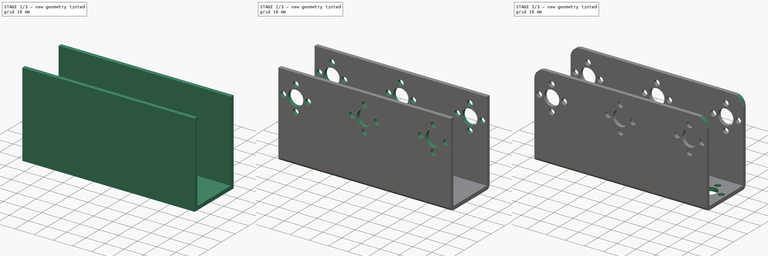
[diagram: build sequence overview — one tinted view per stage of 3, left to right]
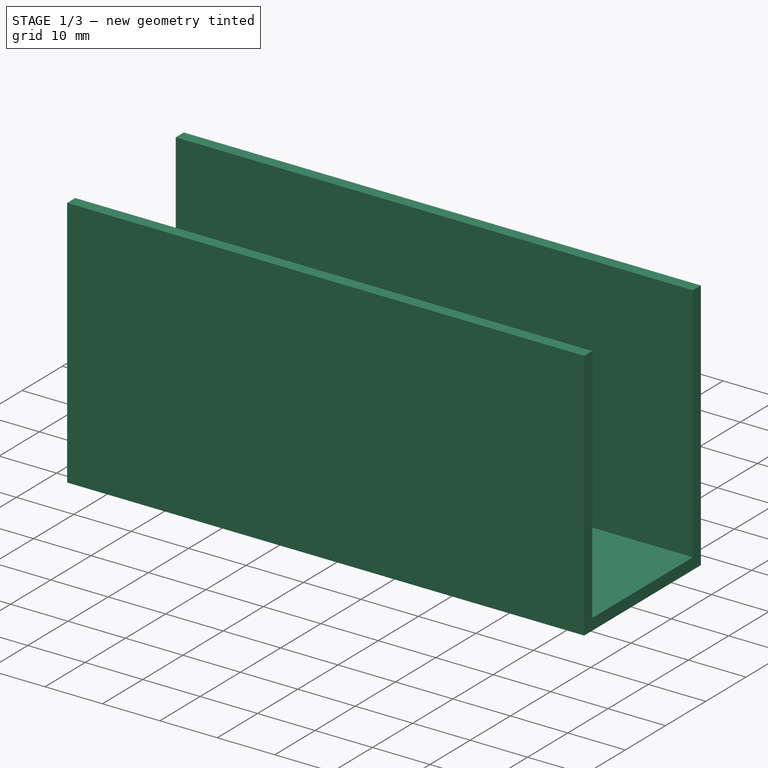
[diagram: stage 1 of 3 — iso view after this stage's code; geometry added in this stage tinted green]
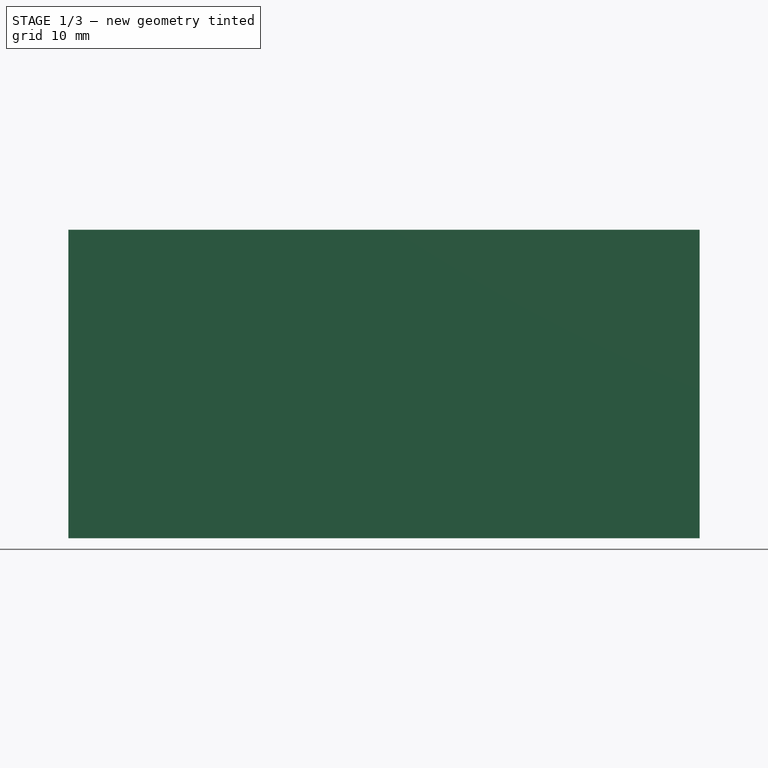
[diagram: stage 1 of 3 — front view after this stage's code; geometry added in this stage tinted green]
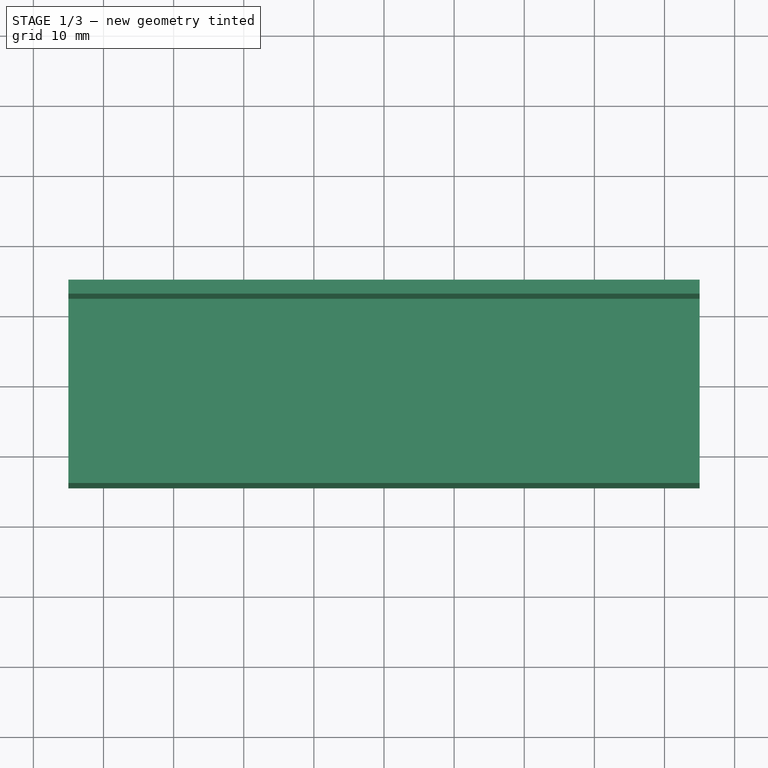
[diagram: stage 1 of 3 — top view after this stage's code; geometry added in this stage tinted green]
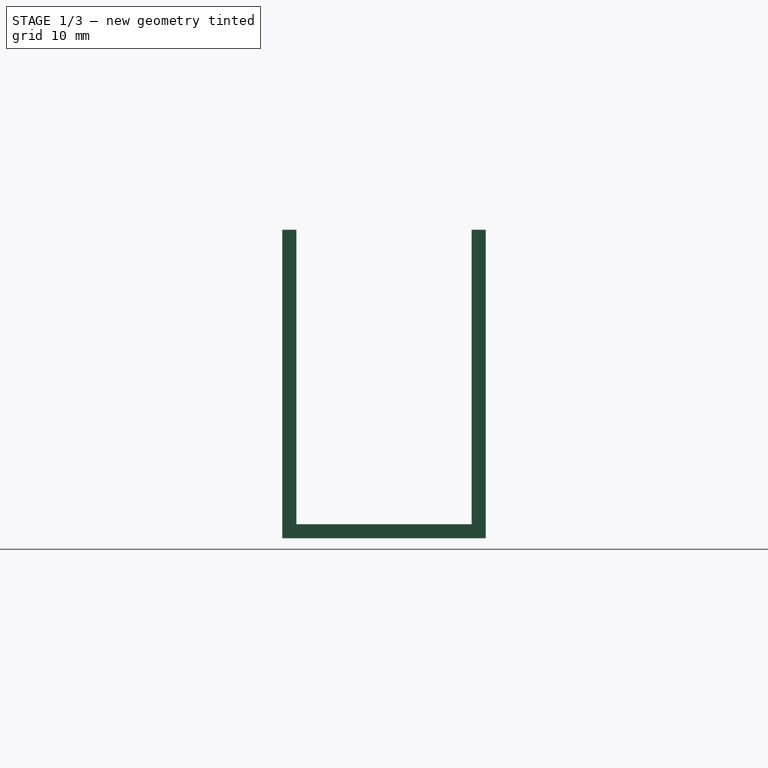
[diagram: stage 1 of 3 — right view after this stage's code; geometry added in this stage tinted green]
FCSTD DOCUMENT  (FreeCAD 0.19R24276 (Git))
Label: parte_baja
License: All rights reserved
LicenseURL: http://en.wikipedia.org/wiki/All_rights_reserved
objects: Sketcher::SketchObject×4, PartDesign::Pad×2, PartDesign::Fillet×2, PartDesign::Pocket×2, PartDesign::Body×1
note: 17 computed .brp shape members not serialized (recipe doc carries the construction recipe); baked Part::Feature solids carry a one-line shape summary decoded from their .brp

FEATURE [Sketcher::SketchObject] Sketch
  FullyConstrained = true
  MapMode = 5
  Support = -> [XY_Plane]
  sketch-geometry (4):
    g0: LineSegment StartX=-45 StartY=14.5 StartZ=0 EndX=45 EndY=14.5 EndZ=0
    g1: LineSegment StartX=45 StartY=14.5 StartZ=0 EndX=45 EndY=-14.5 EndZ=0
    g2: LineSegment StartX=45 StartY=-14.5 StartZ=0 EndX=-45 EndY=-14.5 EndZ=0
    g3: LineSegment StartX=-45 StartY=-14.5 StartZ=0 EndX=-45 EndY=14.5 EndZ=0
  constraints (11):
    c: Coincident(g0,g1)
    c: Coincident(g1,g2)
    c: Coincident(g2,g3)
    c: Coincident(g3,g0)
    c: Horizontal(g0)
    c: Horizontal(g2)
    c: Vertical(g1)
    c: Vertical(g3)
    c: Symmetric(g2,g0,g-1)
    c: DistanceX(g2,g2) = 90
    c: DistanceY(g1,g1) = 29
FEATURE [PartDesign::Pad] Pad
  Direction = (1,1,1)
  Length = 2
  Length2 = 100
  Profile = -> Sketch
  Type = 0
FEATURE [Sketcher::SketchObject] Sketch001
  ExternalGeometry = -> [Pad]
  FullyConstrained = true
  MapMode = 5
  Placement = pos=(0,0,2) rot=(0,0,1;0rad)
  Support = -> [Pad]
  sketch-geometry (8):
    g0: LineSegment StartX=45 StartY=14.5 StartZ=0 EndX=-45 EndY=14.5 EndZ=0
    g1: LineSegment StartX=-45 StartY=14.5 StartZ=0 EndX=-45 EndY=12.5 EndZ=0
    g2: LineSegment StartX=-45 StartY=12.5 StartZ=0 EndX=45 EndY=12.5 EndZ=0
    g3: LineSegment StartX=45 StartY=12.5 StartZ=0 EndX=45 EndY=14.5 EndZ=0
    g4: LineSegment StartX=-45 StartY=-14.5 StartZ=0 EndX=45 EndY=-14.5 EndZ=0
    g5: LineSegment StartX=45 StartY=-14.5 StartZ=0 EndX=45 EndY=-12.5 EndZ=0
    g6: LineSegment StartX=45 StartY=-12.5 StartZ=0 EndX=-45 EndY=-12.5 EndZ=0
    g7: LineSegment StartX=-45 StartY=-12.5 StartZ=0 EndX=-45 EndY=-14.5 EndZ=0
  constraints (22):
    c: Coincident(g0,g1)
    c: Coincident(g1,g2)
    c: Coincident(g2,g3)
    c: Coincident(g3,g0)
    c: Horizontal(g0)
    c: Horizontal(g2)
    c: Vertical(g1)
    c: Vertical(g3)
    c: Coincident(g0,g-3)
    c: Coincident(g4,g5)
    c: Coincident(g5,g6)
    c: Coincident(g6,g7)
    c: Coincident(g7,g4)
    c: Horizontal(g4)
    c: Horizontal(g6)
    c: Vertical(g5)
    c: Vertical(g7)
    c: Coincident(g4,g-4)
    c: Vertical(g5,g0)
    c: Vertical(g6,g1)
    c: DistanceY(g3,g3) = 2
    c: Equal(g3,g5)
FEATURE [PartDesign::Pad] Pad001
  BaseFeature = -> Pad
  Direction = (1,1,1)
  Length = 42
  Length2 = 100
  Profile = -> Sketch001
  Type = 0
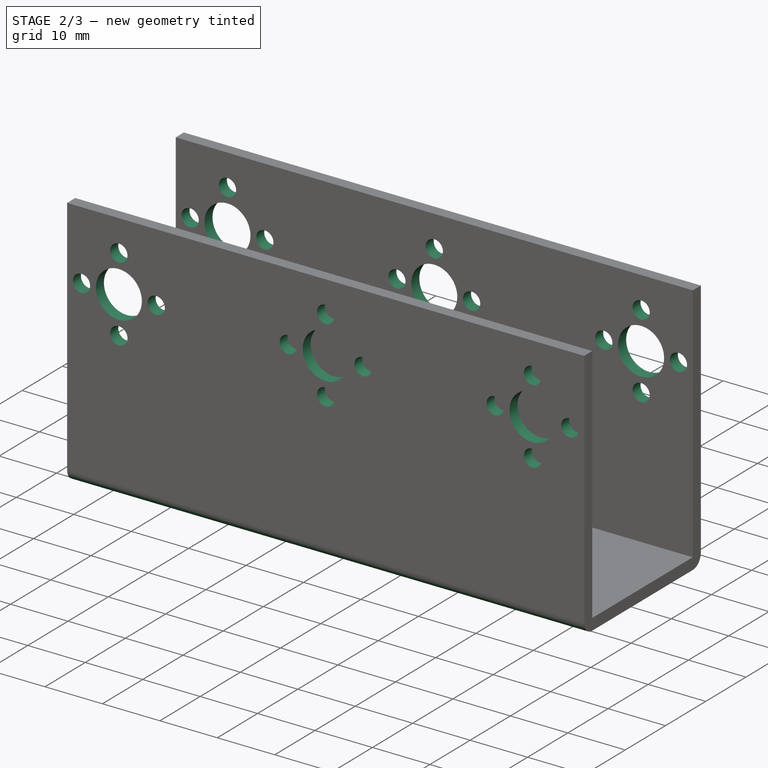
[diagram: stage 2 of 3 — iso view after this stage's code; geometry added in this stage tinted green]
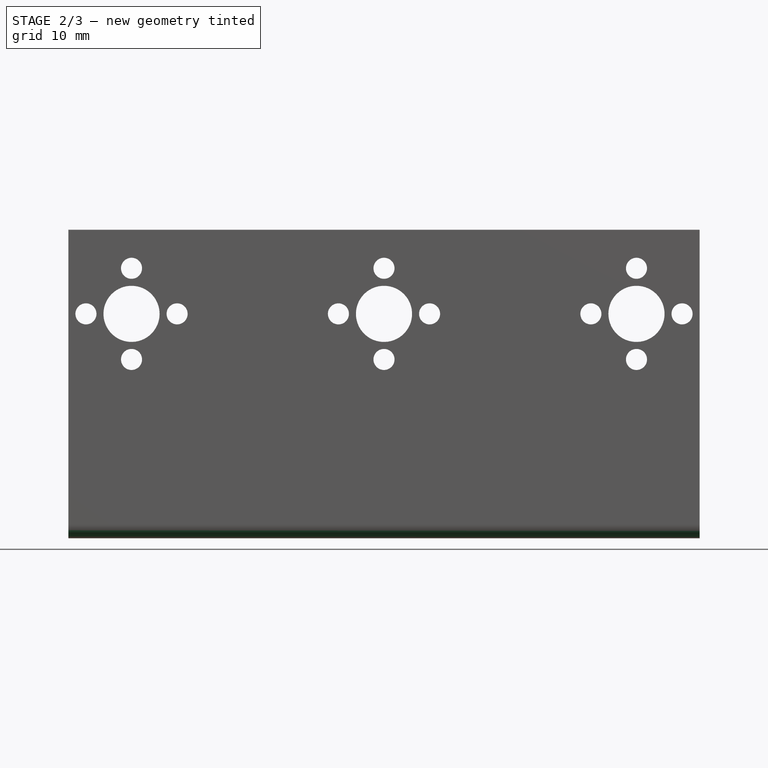
[diagram: stage 2 of 3 — front view after this stage's code; geometry added in this stage tinted green]
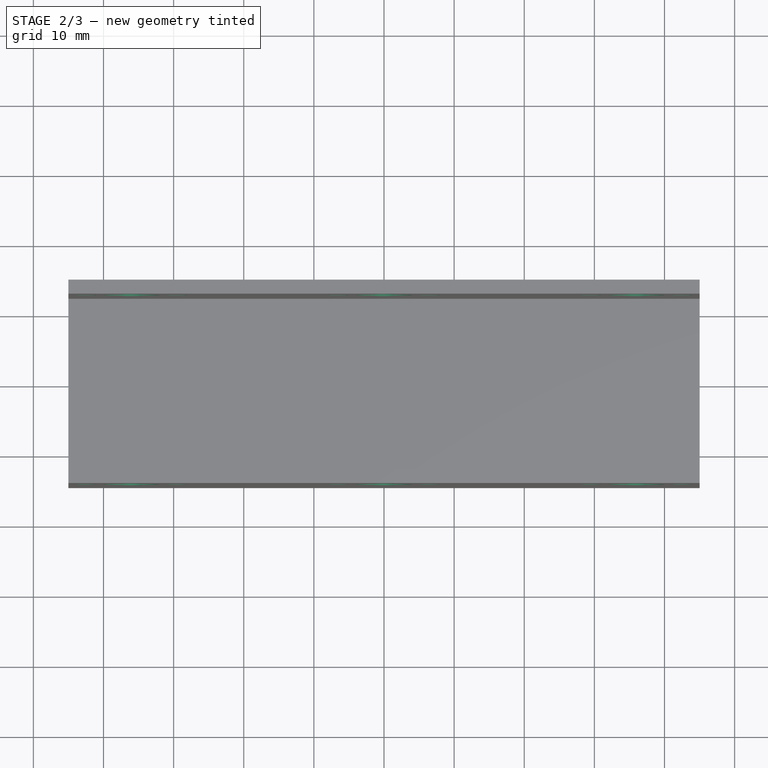
[diagram: stage 2 of 3 — top view after this stage's code; geometry added in this stage tinted green]
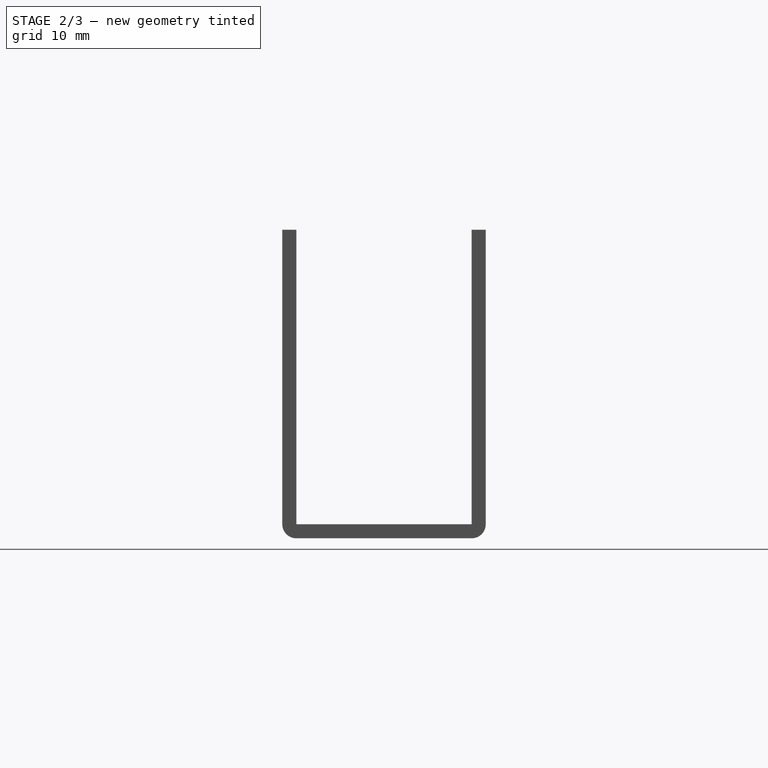
[diagram: stage 2 of 3 — right view after this stage's code; geometry added in this stage tinted green]
FEATURE [PartDesign::Fillet] Fillet
  Base = -> Pad001 [Edge3,Edge15]
  BaseFeature = -> Pad001
  Radius = 1.99
  SupportTransform = false
FEATURE [Sketcher::SketchObject] Sketch002
  ExternalGeometry = -> [Fillet]
  FullyConstrained = true
  MapMode = 5
  Placement = pos=(0,-14.5,0) rot=(1,0,0;1.5708rad)
  Support = -> [Fillet]
  sketch-geometry (21):
    g0: Circle CenterX=-36 CenterY=32 CenterZ=0 NormalX=0 NormalY=0 NormalZ=1 AngleXU=0 Radius=4
    g1: Circle CenterX=-36 CenterY=38.5 CenterZ=0 NormalX=0 NormalY=0 NormalZ=1 AngleXU=0 Radius=1.5
    g2: Circle CenterX=-29.5 CenterY=32 CenterZ=0 NormalX=0 NormalY=0 NormalZ=1 AngleXU=0 Radius=1.5
    g3: Circle CenterX=-36 CenterY=25.5 CenterZ=0 NormalX=0 NormalY=0 NormalZ=1 AngleXU=0 Radius=1.5
    g4: Circle CenterX=-42.5 CenterY=32 CenterZ=0 NormalX=0 NormalY=0 NormalZ=1 AngleXU=0 Radius=1.5
    g5: Circle CenterX=-36 CenterY=32 CenterZ=0 NormalX=0 NormalY=0 NormalZ=1 AngleXU=0 Radius=6.5
    g6: GeomPoint X=-36 Y=40 Z=0
    g7: GeomPoint X=-44 Y=32 Z=0
    g8: Circle CenterX=36 CenterY=32 CenterZ=0 NormalX=0 NormalY=0 NormalZ=1 AngleXU=0 Radius=4
    g9: Circle CenterX=36 CenterY=38.5 CenterZ=0 NormalX=0 NormalY=0 NormalZ=1 AngleXU=0 Radius=1.5
    g10: Circle CenterX=29.5 CenterY=32 CenterZ=0 NormalX=0 NormalY=0 NormalZ=1 AngleXU=0 Radius=1.5
    g11: Circle CenterX=36 CenterY=25.5 CenterZ=0 NormalX=0 NormalY=0 NormalZ=1 AngleXU=0 Radius=1.5
    g12: Circle CenterX=42.5 CenterY=32 CenterZ=0 NormalX=0 NormalY=0 NormalZ=1 AngleXU=0 Radius=1.5
    g13: Circle CenterX=36 CenterY=32 CenterZ=0 NormalX=0 NormalY=0 NormalZ=1 AngleXU=0 Radius=6.5
    g14: Circle CenterX=0 CenterY=32 CenterZ=0 NormalX=0 NormalY=0 NormalZ=1 AngleXU=0 Radius=4
    g15: Circle CenterX=0 CenterY=38.5 CenterZ=0 NormalX=0 NormalY=0 NormalZ=1 AngleXU=0 Radius=1.5
    g16: Circle CenterX=6.5 CenterY=32 CenterZ=0 NormalX=0 NormalY=0 NormalZ=1 AngleXU=0 Radius=1.5
    g17: Circle CenterX=0 CenterY=25.5 CenterZ=0 NormalX=0 NormalY=0 NormalZ=1 AngleXU=0 Radius=1.5
    g18: Circle CenterX=-6.5 CenterY=32 CenterZ=0 NormalX=0 NormalY=0 NormalZ=1 AngleXU=0 Radius=1.5
    g19: Circle CenterX=0 CenterY=32 CenterZ=0 NormalX=0 NormalY=0 NormalZ=1 AngleXU=0 Radius=6.5
    g20: GeomPoint X=0 Y=40 Z=0
  constraints (50):
    c: Symmetric(g1,g3,g0)
    c: Symmetric(g4,g2,g0)
    c: Diameter(g1) = 3
    c: Equal(g1,g4)
    c: Equal(g1,g3)
    c: Equal(g1,g2)
    c: Coincident(g5,g0)
    c: PointOnObject(g4,g5)
    c: PointOnObject(g3,g5)
    c: Radius(g5) = 6.5
    c: PointOnObject(g6,g1)
    c: PointOnObject(g7,g4)
    c: DistanceY(g6,g-3) = 4
    c: DistanceX(g-3,g7) = 1
    c: Horizontal(g7,g4)
    c: Horizontal(g4,g0)
    c: Vertical(g1,g0)
    c: Vertical(g0,g6)
    c: Diameter(g0) = 8
    c: Symmetric(g9,g11,g8)
    c: Symmetric(g12,g10,g8)
    c: Diameter(g9) = 3
    c: Equal(g9,g12)
    c: Equal(g9,g11)
    c: Equal(g9,g10)
    c: Coincident(g13,g8)
    c: PointOnObject(g12,g13)
    c: PointOnObject(g11,g13)
    c: Radius(g13) = 6.5
    c: Diameter(g8) = 8
    c: Symmetric(g0,g8,g-2)
    c: Horizontal(g12,g8)
    c: Vertical(g9,g8)
    c: Symmetric(g15,g17,g14)
    c: Symmetric(g18,g16,g14)
    c: Equal(g1,g15) = 3
    c: Equal(g15,g18)
    c: Equal(g15,g17)
    c: Equal(g15,g16)
    c: Coincident(g19,g14)
    c: PointOnObject(g18,g19)
    c: PointOnObject(g17,g19)
    c: Equal(g5,g19) = 6.5
    c: PointOnObject(g20,g15)
    c: Horizontal(g18,g14)
    c: Vertical(g15,g14)
    c: Vertical(g14,g20)
    c: Equal(g0,g14) = 8
    c: PointOnObject(g14,g-2)
    c: Horizontal(g14,g0)
FEATURE [PartDesign::Pocket] Pocket
  BaseFeature = -> Fillet
  Length = 5
  Length2 = 100
  Profile = -> Sketch002
  Type = 1
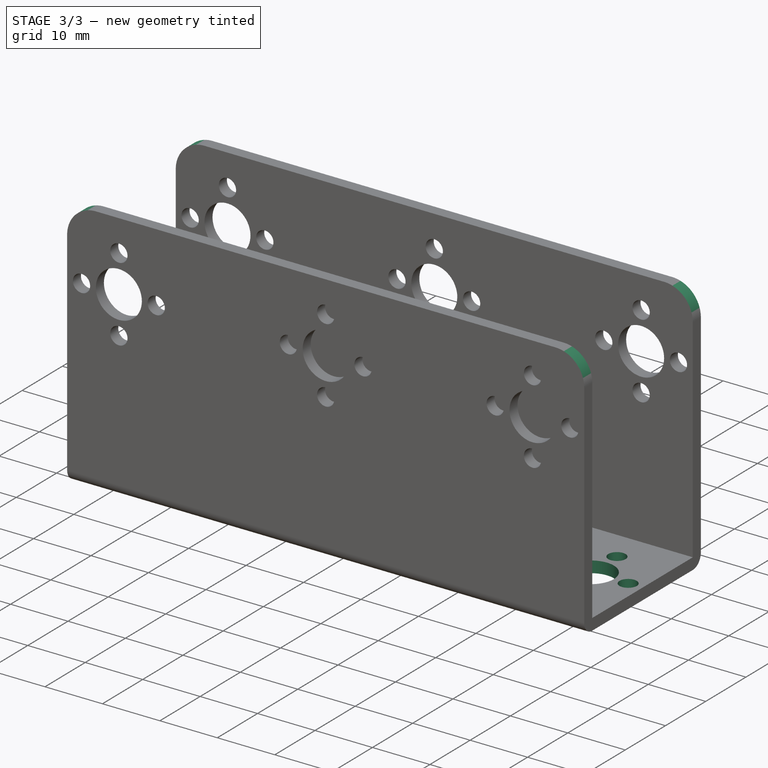
[diagram: stage 3 of 3 — iso view after this stage's code; geometry added in this stage tinted green]
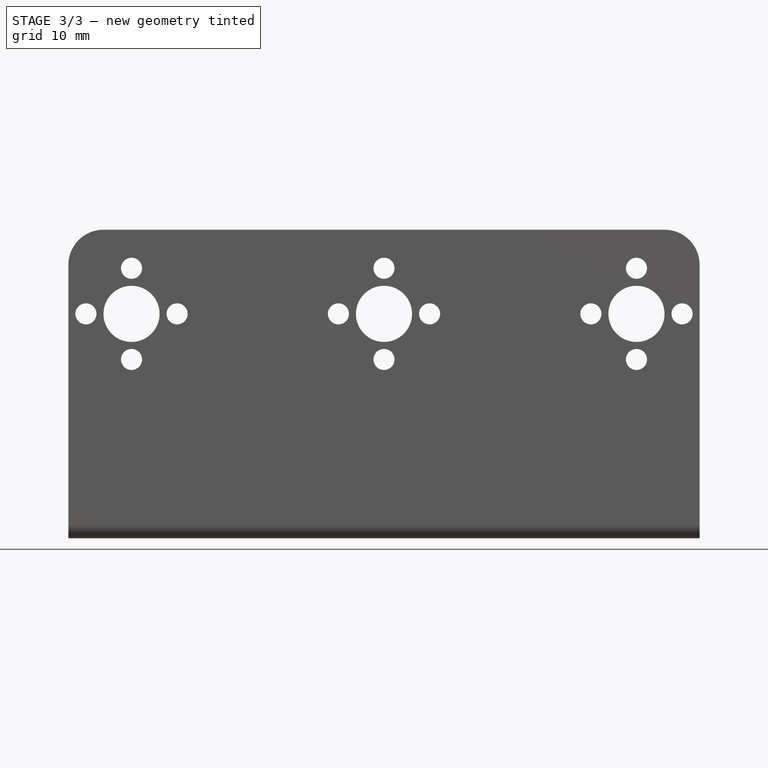
[diagram: stage 3 of 3 — front view after this stage's code; geometry added in this stage tinted green]
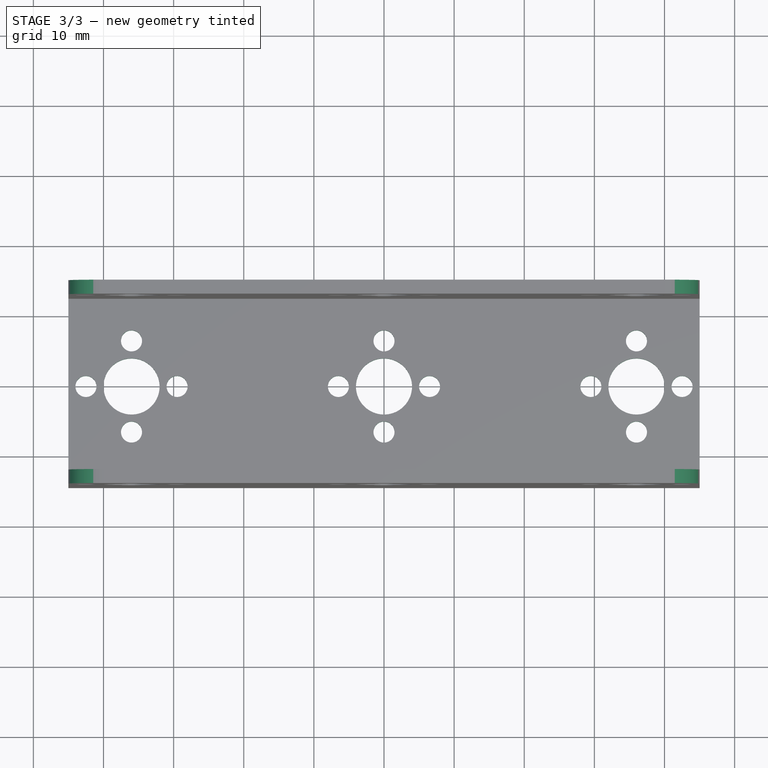
[diagram: stage 3 of 3 — top view after this stage's code; geometry added in this stage tinted green]
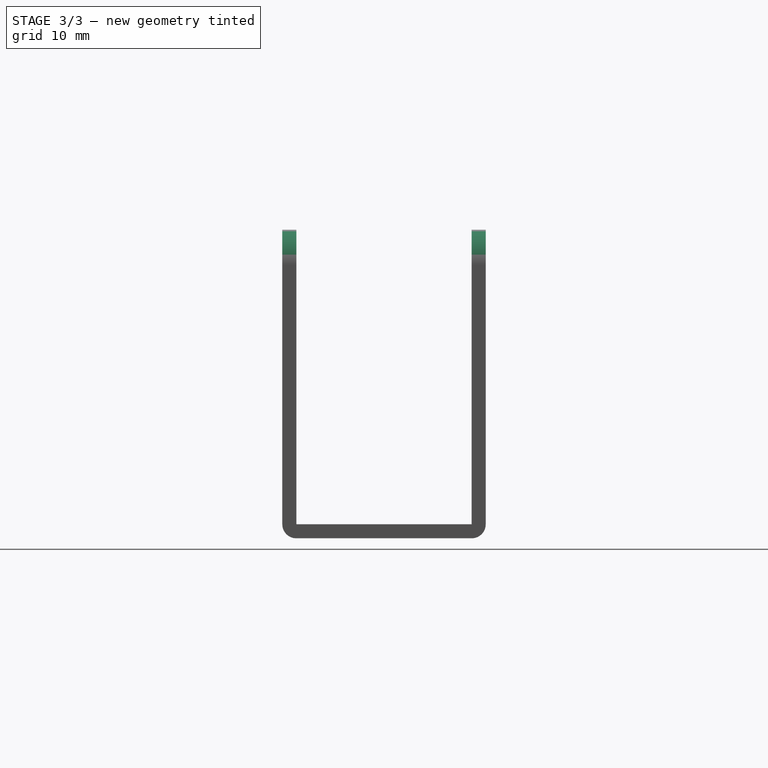
[diagram: stage 3 of 3 — right view after this stage's code; geometry added in this stage tinted green]
FEATURE [Sketcher::SketchObject] Sketch003
  ExternalGeometry = -> [Pocket]
  FullyConstrained = true
  MapMode = 5
  Placement = pos=(0,0,0) rot=(1,0,0;3.14159rad)
  Support = -> [Pocket]
  sketch-geometry (22):
    g0: Circle CenterX=-36 CenterY=6.5 CenterZ=0 NormalX=0 NormalY=0 NormalZ=1 AngleXU=0 Radius=1.5
    g1: Circle CenterX=-36 CenterY=0 CenterZ=0 NormalX=0 NormalY=0 NormalZ=1 AngleXU=0 Radius=4
    g2: Circle CenterX=-36 CenterY=-6.5 CenterZ=0 NormalX=0 NormalY=0 NormalZ=1 AngleXU=0 Radius=1.5
    g3: Circle CenterX=-29.5 CenterY=0 CenterZ=0 NormalX=0 NormalY=0 NormalZ=1 AngleXU=0 Radius=1.5
    g4: Circle CenterX=-42.5 CenterY=0 CenterZ=0 NormalX=0 NormalY=0 NormalZ=1 AngleXU=0 Radius=1.5
    g5: Circle CenterX=-36 CenterY=0 CenterZ=0 NormalX=0 NormalY=0 NormalZ=1 AngleXU=0 Radius=6.5
    g6: GeomPoint X=-36 Y=8 Z=0
    g7: GeomPoint X=-44 Y=0 Z=0
    g8: Circle CenterX=36 CenterY=6.5 CenterZ=0 NormalX=0 NormalY=0 NormalZ=1 AngleXU=0 Radius=1.5
    g9: Circle CenterX=36 CenterY=0 CenterZ=0 NormalX=0 NormalY=0 NormalZ=1 AngleXU=0 Radius=4
    g10: Circle CenterX=36 CenterY=-6.5 CenterZ=0 NormalX=0 NormalY=0 NormalZ=1 AngleXU=0 Radius=1.5
    g11: Circle CenterX=29.5 CenterY=0 CenterZ=0 NormalX=0 NormalY=0 NormalZ=1 AngleXU=0 Radius=1.5
    g12: Circle CenterX=42.5 CenterY=0 CenterZ=0 NormalX=0 NormalY=0 NormalZ=1 AngleXU=0 Radius=1.5
    g13: Circle CenterX=36 CenterY=0 CenterZ=0 NormalX=0 NormalY=0 NormalZ=1 AngleXU=0 Radius=6.5
    g14: Circle CenterX=0 CenterY=6.5 CenterZ=0 NormalX=0 NormalY=0 NormalZ=1 AngleXU=0 Radius=1.5
    g15: Circle CenterX=0 CenterY=0 CenterZ=0 NormalX=0 NormalY=0 NormalZ=1 AngleXU=0 Radius=4
    g16: Circle CenterX=-4.9e-14 CenterY=-6.5 CenterZ=0 NormalX=0 NormalY=0 NormalZ=1 AngleXU=0 Radius=1.5
    g17: Circle CenterX=6.5 CenterY=1.46e-14 CenterZ=0 NormalX=0 NormalY=0 NormalZ=1 AngleXU=0 Radius=1.5
    g18: Circle CenterX=-6.5 CenterY=0 CenterZ=0 NormalX=0 NormalY=0 NormalZ=1 AngleXU=0 Radius=1.5
    g19: Circle CenterX=0 CenterY=0 CenterZ=0 NormalX=0 NormalY=0 NormalZ=1 AngleXU=0 Radius=6.5
    g20: GeomPoint X=0 Y=8 Z=0
    g21: GeomPoint X=-8 Y=0 Z=0
  constraints (51):
    c: PointOnObject(g1,g-1)
    c: PointOnObject(g3,g-1)
    c: Diameter(g3) = 3
    c: Equal(g3,g0)
    c: Equal(g3,g4)
    c: Equal(g3,g2)
    c: Coincident(g5,g1)
    c: PointOnObject(g0,g5)
    c: PointOnObject(g4,g5)
    c: Symmetric(g3,g4,g1)
    c: Symmetric(g2,g0,g1)
    c: Diameter(g1) = 8
    c: Radius(g5) = 6.5
    c: PointOnObject(g6,g0)
    c: PointOnObject(g7,g4)
    c: Vertical(g1,g0)
    c: Vertical(g0,g6)
    c: Horizontal(g4,g7)
    c: DistanceX(g-3,g7) = 1
    c: Diameter(g11) = 3
    c: Equal(g11,g8)
    c: Equal(g11,g12)
    c: Equal(g11,g10)
    c: Coincident(g13,g9)
    c: PointOnObject(g8,g13)
    c: PointOnObject(g12,g13)
    c: Symmetric(g11,g12,g9)
    c: Symmetric(g10,g8,g9)
    c: Diameter(g9) = 8
    c: Radius(g13) = 6.5
    c: Symmetric(g9,g1,g-2)
    c: Vertical(g8,g9)
    c: Horizontal(g12,g9)
    c: Equal(g3,g17) = 3
    c: Equal(g17,g14)
    c: Equal(g17,g18)
    c: Equal(g17,g16)
    c: Coincident(g19,g15)
    c: PointOnObject(g14,g19)
    c: PointOnObject(g18,g19)
    c: Symmetric(g17,g18,g15)
    c: Symmetric(g16,g14,g15)
    c: Equal(g1,g15) = 8
    c: Equal(g5,g19) = 6.5
    c: PointOnObject(g20,g14)
    c: PointOnObject(g21,g18)
    c: Vertical(g15,g14)
    c: Vertical(g14,g20)
    c: Horizontal(g18,g21)
    c: PointOnObject(g21,g-1)
    c: Coincident(g-1,g15)
FEATURE [PartDesign::Pocket] Pocket001
  BaseFeature = -> Pocket
  Length = 5
  Length2 = 100
  Profile = -> Sketch003
  Type = 0
FEATURE [PartDesign::Fillet] Fillet001
  Base = -> Pocket001 [Edge113,Edge79,Edge77,Edge43]
  BaseFeature = -> Pocket001
  Radius = 5
  SupportTransform = false
FEATURE [PartDesign::Body] Body
  Group = -> [Sketch,Pad,Sketch001,Pad001,Fillet,Sketch002,Pocket,Sketch003,Pocket001,Fillet001]
  Origin = -> Origin
  Tip = -> Fillet001
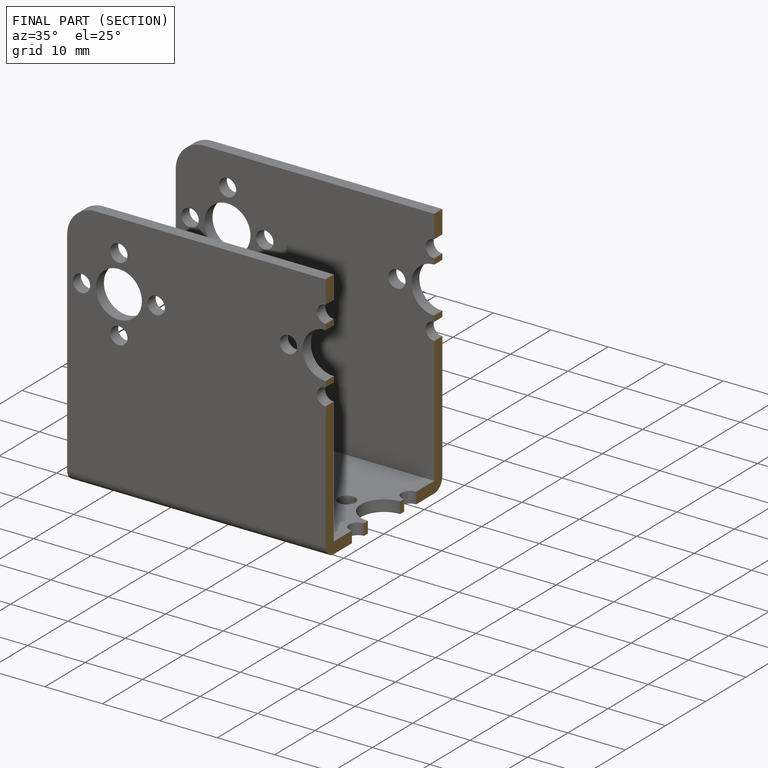
[diagram: finished part — half-section view (interior)]
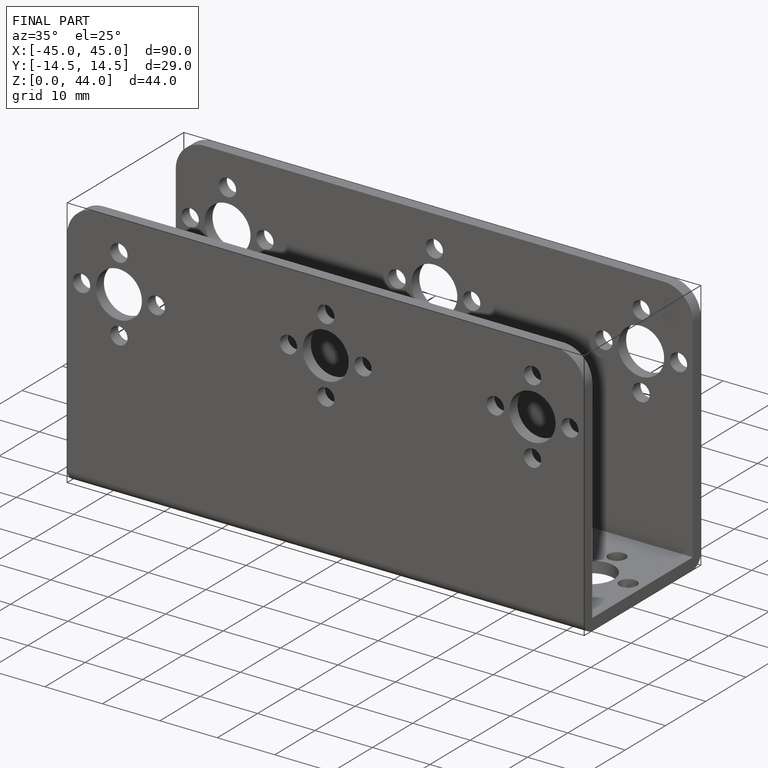
[diagram: finished part — iso view with bounding-box wireframe]
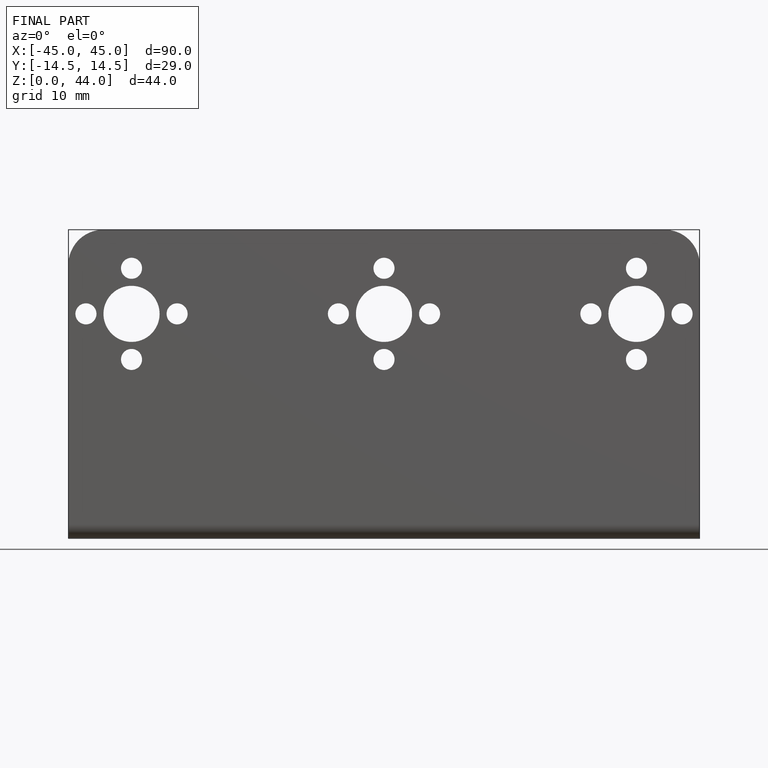
[diagram: finished part — front view with bounding-box wireframe]
